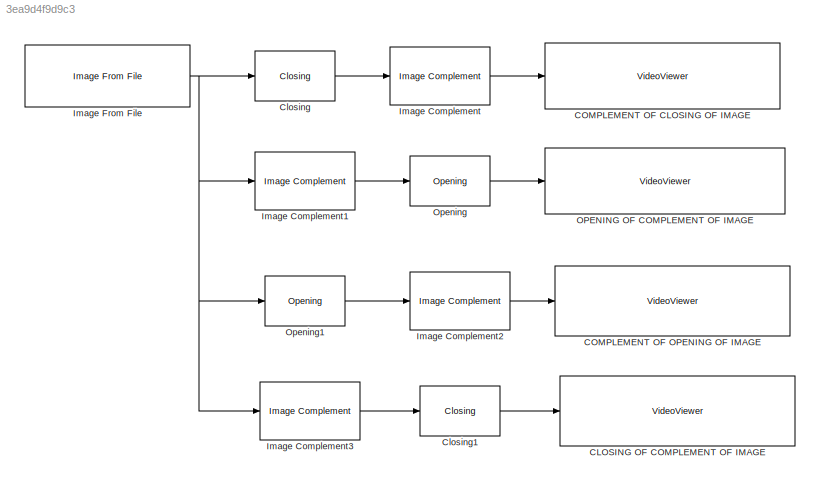
MODEL slx_3ea9d4f9d9c3
KIND model
CONFIG AbsTol = auto
CONFIG EnableMultiTasking = off
CONFIG FixedStep = auto
CONFIG MaxStep = auto
CONFIG MinStep = auto
CONFIG RelTol = 1e-3
CONFIG SampleTimeConstraint = Unconstrained
CONFIG Solver = VariableStepAuto
CONFIG SolverName = VariableStepAuto
CONFIG StartTime = 0.0
CONFIG StopTime = 10.0
BLOCK [VideoViewer] CLOSING OF COMPLEMENT OF IMAGE
  FigPos = [320.2 414.8 417.6 304]
  Ports = [1]
  ScopeSpecificationString = vipscopes.VideoViewerScopeCfg('CurrentConfiguration', extmgr.ConfigurationSet(extmgr.Configuration('Core','General UI',true),extmgr.Configuration('Core','Source UI',true),extmgr.Configuration('Sources','WiredSimulink',true),extmgr.Configuration('Visuals','Video',true),extmgr.Configuration('Tools','Image Navigation Tools',true),extmgr.Configuration('Tools','Image Tool',true),extmgr.Configuration('T...<+81ch>
BLOCK [VideoViewer] COMPLEMENT OF CLOSING OF IMAGE
  FigPos = [739.4 826 417.6 304]
  Ports = [1]
  ScopeSpecificationString = vipscopes.VideoViewerScopeCfg('CurrentConfiguration', extmgr.ConfigurationSet(extmgr.Configuration('Core','General UI',true),extmgr.Configuration('Core','Source UI',true),extmgr.Configuration('Sources','WiredSimulink',true),extmgr.Configuration('Visuals','Video',true),extmgr.Configuration('Tools','Image Navigation Tools',true),extmgr.Configuration('Tools','Image Tool',true),extmgr.Configuration('T...<+78ch>
BLOCK [VideoViewer] COMPLEMENT OF OPENING OF IMAGE
  FigPos = [739.4 415.6 417.6 304]
  Ports = [1]
  ScopeSpecificationString = vipscopes.VideoViewerScopeCfg('CurrentConfiguration', extmgr.ConfigurationSet(extmgr.Configuration('Core','General UI',true),extmgr.Configuration('Core','Source UI',true),extmgr.Configuration('Sources','WiredSimulink',true),extmgr.Configuration('Visuals','Video',true),extmgr.Configuration('Tools','Image Navigation Tools',true),extmgr.Configuration('Tools','Image Tool',true),extmgr.Configuration('T...<+81ch>
BLOCK [Reference] Closing  REF=visionmorphops/Closing
  Ports = [1, 1]
  SourceBlock = visionmorphops/Closing
  SourceProductBaseCode = VP
  SourceProductName = Computer Vision Toolbox
  SourceType = Closing
BLOCK [Reference] Closing1  REF=visionmorphops/Closing
  Ports = [1, 1]
  SourceBlock = visionmorphops/Closing
  SourceProductBaseCode = VP
  SourceProductName = Computer Vision Toolbox
  SourceType = Closing
BLOCK [Reference] Image Complement  REF=visionconversions/Image Complement
  Ports = [1, 1]
  SourceBlock = visionconversions/Image Complement
  SourceProductBaseCode = VP
  SourceProductName = Computer Vision Toolbox
  SourceType = Image Complement
BLOCK [Reference] Image Complement1  REF=visionconversions/Image Complement
  Ports = [1, 1]
  SourceBlock = visionconversions/Image Complement
  SourceProductBaseCode = VP
  SourceProductName = Computer Vision Toolbox
  SourceType = Image Complement
BLOCK [Reference] Image Complement2  REF=visionconversions/Image Complement
  Ports = [1, 1]
  SourceBlock = visionconversions/Image Complement
  SourceProductBaseCode = VP
  SourceProductName = Computer Vision Toolbox
  SourceType = Image Complement
BLOCK [Reference] Image Complement3  REF=visionconversions/Image Complement
  Ports = [1, 1]
  SourceBlock = visionconversions/Image Complement
  SourceProductBaseCode = VP
  SourceProductName = Computer Vision Toolbox
  SourceType = Image Complement
BLOCK [Reference] Image From File  REF=visionsources/Image From File
  Ports = [0, 1]
  SourceBlock = visionsources/Image From File
  SourceProductBaseCode = VP
  SourceProductName = Computer Vision Toolbox
  SourceType = Image From File
  Tag = vipblks_nd
BLOCK [VideoViewer] OPENING OF COMPLEMENT OF IMAGE
  FigPos = [321.8 825.2 417.6 304]
  Ports = [1]
  ScopeSpecificationString = vipscopes.VideoViewerScopeCfg('CurrentConfiguration', extmgr.ConfigurationSet(extmgr.Configuration('Core','General UI',true),extmgr.Configuration('Core','Source UI',true),extmgr.Configuration('Sources','WiredSimulink',true),extmgr.Configuration('Visuals','Video',true),extmgr.Configuration('Tools','Image Navigation Tools',true),extmgr.Configuration('Tools','Image Tool',true),extmgr.Configuration('T...<+80ch>
BLOCK [Reference] Opening  REF=visionmorphops/Opening
  Ports = [1, 1]
  SourceBlock = visionmorphops/Opening
  SourceProductBaseCode = VP
  SourceProductName = Computer Vision Toolbox
  SourceType = Opening
BLOCK [Reference] Opening1  REF=visionmorphops/Opening
  Ports = [1, 1]
  SourceBlock = visionmorphops/Opening
  SourceProductBaseCode = VP
  SourceProductName = Computer Vision Toolbox
  SourceType = Opening
LINE Closing1:1 -> CLOSING OF COMPLEMENT OF IMAGE:1
LINE Closing:1 -> Image Complement:1
LINE Image Complement1:1 -> Opening:1
LINE Image Complement2:1 -> COMPLEMENT OF OPENING OF IMAGE:1
LINE Image Complement3:1 -> Closing1:1
LINE Image Complement:1 -> COMPLEMENT OF CLOSING OF IMAGE:1
NET Image From File:1 -> Closing:1, Image Complement1:1, Image Complement3:1, Opening1:1
LINE Opening1:1 -> Image Complement2:1
LINE Opening:1 -> OPENING OF COMPLEMENT OF IMAGE:1
note: NET lines group one-source signal fan-out (src -> all destinations, sorted); 1:1 wires keep LINE
